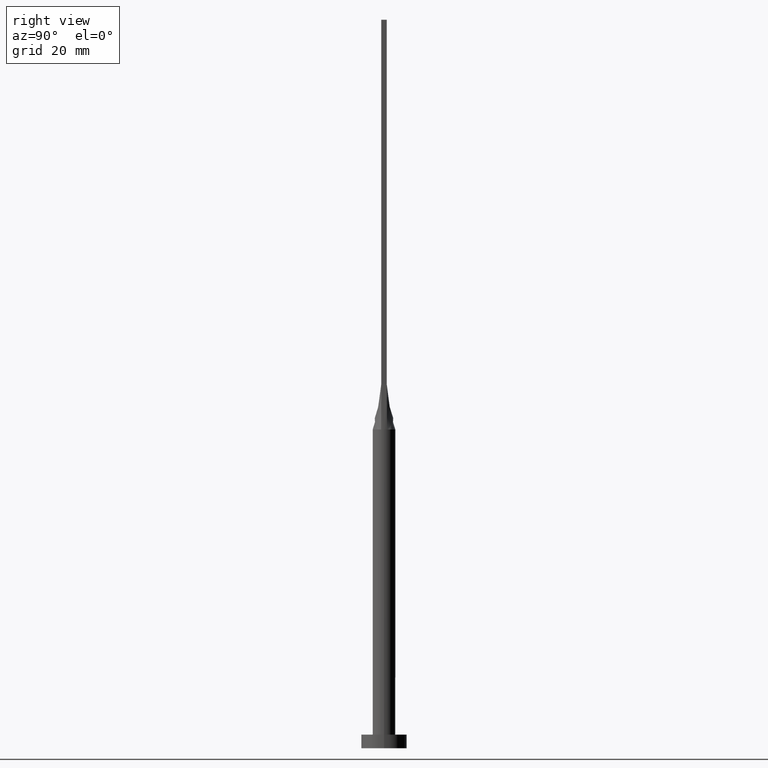
[diagram: clean part render]
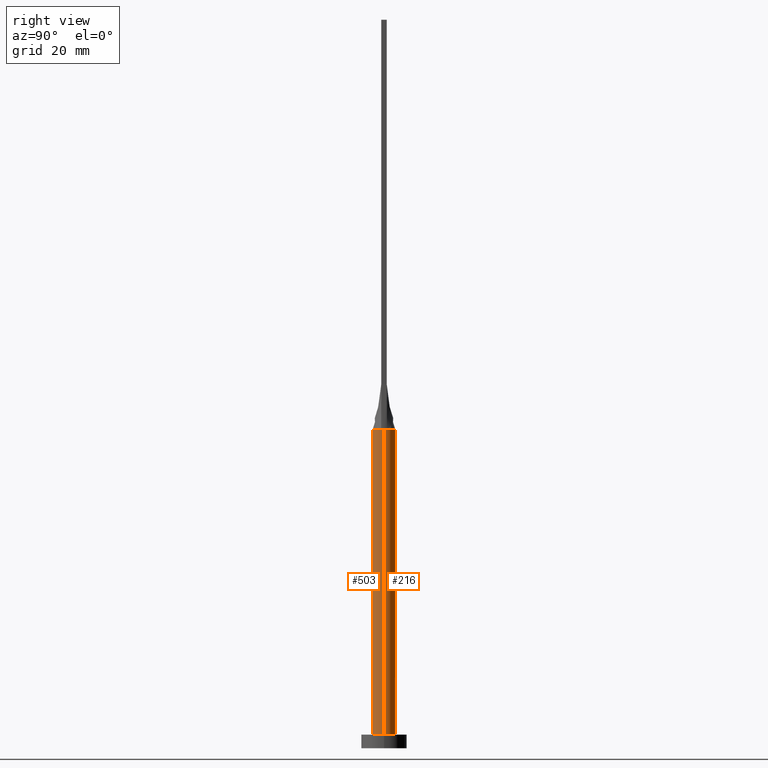
[diagram: same view with one multi-face feature highlighted, each face labeled with its STEP entity id]
A machine part, right view. The highlighted faces form ONE feature: a constant-radius fillet chain: 2 tangent blend faces with common blend radius 2.5 mm. The faces share edges in the B-rep.
Their STEP definitions:
[1] entity #216 (Cylinder):
#3 = CARTESIAN_POINT ( 'NONE',  ( -0.6394215159088052491, 2.436483607037785326, 70.00000000000000000 ) ) ;
#4 = ORIENTED_EDGE ( 'NONE', *, *, #564, .F. ) ;
#7 = CARTESIAN_POINT ( 'NONE',  ( 1.880930080310023289, 1.670304384679167642, 69.99999999999998579 ) ) ;
#23 = AXIS2_PLACEMENT_3D ( 'NONE', #435, #570, #172 ) ;
#44 = ORIENTED_EDGE ( 'NONE', *, *, #307, .T. ) ;
#46 = CARTESIAN_POINT ( 'NONE',  ( 0.6394215159088050271, 2.436483607037784882, 69.99999999999998579 ) ) ;
#62 = CARTESIAN_POINT ( 'NONE',  ( -2.415775789045403688, 0.6442075170323000588, 70.00000000000000000 ) ) ;
#85 = DIRECTION ( 'NONE',  ( 1.000000000000000000, 0.000000000000000000, 0.000000000000000000 ) ) ;
#94 = CARTESIAN_POINT ( 'NONE',  ( -2.415775789045403688, 0.6442075170323000588, 70.00000000000000000 ) ) ;
#95 = ORIENTED_EDGE ( 'NONE', *, *, #232, .T. ) ;
#98 = VERTEX_POINT ( 'NONE', #62 ) ;
#100 = CARTESIAN_POINT ( 'NONE',  ( 0.3201159637850002349, 2.500000000000000888, 70.00000000000000000 ) ) ;
#108 = VECTOR ( 'NONE', #488, 1000.000000000000000 ) ;
#115 = CYLINDRICAL_SURFACE ( 'NONE', #482, 2.500000000000000000 ) ;
#137 = AXIS2_PLACEMENT_3D ( 'NONE', #171, #487, #476 ) ;
#141 = CARTESIAN_POINT ( 'NONE',  ( 1.466504377161500949, 2.043814966248089782, 69.99999999999998579 ) ) ;
#148 = VERTEX_POINT ( 'NONE', #428 ) ;
#171 = CARTESIAN_POINT ( 'NONE',  ( 0.000000000000000000, 0.000000000000000000, 70.00000000000000000 ) ) ;
#172 = DIRECTION ( 'NONE',  ( 1.000000000000000000, 0.000000000000000000, 0.000000000000000000 ) ) ;
#192 = CARTESIAN_POINT ( 'NONE',  ( -1.466504377161500727, 2.043814966248090226, 70.00000000000000000 ) ) ;
#216 = ADVANCED_FACE ( 'NONE', ( #523 ), #115, .T. ) ;
#220 = VERTEX_POINT ( 'NONE', #477 ) ;
#225 = AXIS2_PLACEMENT_3D ( 'NONE', #350, #562, #85 ) ;
#232 = EDGE_CURVE ( 'NONE', #148, #220, #383, .T. ) ;
#241 = CARTESIAN_POINT ( 'NONE',  ( -0.3201159637850009010, 2.500000000000000444, 69.99999999999998579 ) ) ;
#242 = EDGE_LOOP ( 'NONE', ( #319, #95, #44, #263, #4, #410 ) ) ;
#263 = ORIENTED_EDGE ( 'NONE', *, *, #462, .F. ) ;
#274 = VERTEX_POINT ( 'NONE', #386 ) ;
#276 = VERTEX_POINT ( 'NONE', #389 ) ;
#280 = CIRCLE ( 'NONE', #23, 2.500000000000000000 ) ;
#281 = CARTESIAN_POINT ( 'NONE',  ( -1.212939335911090044, 2.207734225347456114, 70.00000000000001421 ) ) ;
#284 = CARTESIAN_POINT ( 'NONE',  ( -2.500000000000000000, 0.000000000000000000, 3.000000000000000000 ) ) ;
#307 = EDGE_CURVE ( 'NONE', #220, #460, #280, .T. ) ;
#319 = ORIENTED_EDGE ( 'NONE', *, *, #551, .F. ) ;
#321 = CARTESIAN_POINT ( 'NONE',  ( -2.283437435282019923, 1.045786430836911141, 70.00000000000001421 ) ) ;
#348 = DIRECTION ( 'NONE',  ( -1.000000000000000000, 0.000000000000000000, 0.000000000000000000 ) ) ;
#350 = CARTESIAN_POINT ( 'NONE',  ( 0.000000000000000000, 0.000000000000000000, 70.00000000000000000 ) ) ;
#355 = EDGE_CURVE ( 'NONE', #274, #98, #424, .T. ) ;
#367 = CARTESIAN_POINT ( 'NONE',  ( 1.212939335911088934, 2.207734225347457002, 69.99999999999998579 ) ) ;
#379 = CIRCLE ( 'NONE', #225, 2.500000000000000000 ) ;
#383 = LINE ( 'NONE', #439, #108 ) ;
#386 = CARTESIAN_POINT ( 'NONE',  ( 2.415751997725693823, 0.6442011318043520118, 70.00000000000000000 ) ) ;
#389 = CARTESIAN_POINT ( 'NONE',  ( -2.499999999999999556, -1.638601646481158325E-16, 70.00000000000000000 ) ) ;
#401 = CARTESIAN_POINT ( 'NONE',  ( 2.363720129086103405, 0.8386587010896275896, 69.99999999999998579 ) ) ;
#403 = CARTESIAN_POINT ( 'NONE',  ( 2.283437435282019923, 1.045786430836911585, 70.00000000000000000 ) ) ;
#409 = CARTESIAN_POINT ( 'NONE',  ( 2.415751997725693823, 0.6442011318043520118, 70.00000000000000000 ) ) ;
#410 = ORIENTED_EDGE ( 'NONE', *, *, #355, .F. ) ;
#412 = CARTESIAN_POINT ( 'NONE',  ( -2.042400361660746899, 1.461628045180436430, 70.00000000000000000 ) ) ;
#420 = LINE ( 'NONE', #422, #458 ) ;
#422 = CARTESIAN_POINT ( 'NONE',  ( -2.500000000000000000, 0.000000000000000000, 70.00000000000000000 ) ) ;
#424 = B_SPLINE_CURVE_WITH_KNOTS ( 'NONE', 3,
 ( #409, #401, #403, #489, #7, #141, #367, #46, #100, #241, #3, #281, #192, #534, #412, #321, #540, #94 ),
 .UNSPECIFIED., .F., .F.,
 ( 4, 2, 2, 2, 2, 2, 2, 2, 4 ),
 ( 0.000000000000000000, 0.1249999999999999445, 0.2499999999999998890, 0.3749999999999998335, 0.4999999999999997780, 0.6249999999999997780, 0.7499999999999997780, 0.8749999999999997780, 1.000000000000000000 ),
 .UNSPECIFIED. ) ;
#428 = CARTESIAN_POINT ( 'NONE',  ( 2.499999999999999556, 1.077931475469669239E-17, 70.00000000000000000 ) ) ;
#435 = CARTESIAN_POINT ( 'NONE',  ( 0.000000000000000000, 0.000000000000000000, 3.000000000000000000 ) ) ;
#439 = CARTESIAN_POINT ( 'NONE',  ( 2.500000000000000000, 3.061616997868383141E-16, 70.00000000000000000 ) ) ;
#442 = CARTESIAN_POINT ( 'NONE',  ( 0.000000000000000000, 0.000000000000000000, 70.00000000000000000 ) ) ;
#458 = VECTOR ( 'NONE', #461, 1000.000000000000000 ) ;
#460 = VERTEX_POINT ( 'NONE', #284 ) ;
#461 = DIRECTION ( 'NONE',  ( -0.000000000000000000, -0.000000000000000000, -1.000000000000000000 ) ) ;
#462 = EDGE_CURVE ( 'NONE', #276, #460, #420, .T. ) ;
#476 = DIRECTION ( 'NONE',  ( 1.000000000000000000, 0.000000000000000000, 0.000000000000000000 ) ) ;
#477 = CARTESIAN_POINT ( 'NONE',  ( 2.500000000000000000, 3.061616997868383141E-16, 3.000000000000000000 ) ) ;
#480 = DIRECTION ( 'NONE',  ( -0.000000000000000000, -0.000000000000000000, -1.000000000000000000 ) ) ;
#482 = AXIS2_PLACEMENT_3D ( 'NONE', #442, #480, #348 ) ;
#487 = DIRECTION ( 'NONE',  ( 0.000000000000000000, 0.000000000000000000, 1.000000000000000000 ) ) ;
#488 = DIRECTION ( 'NONE',  ( -0.000000000000000000, -0.000000000000000000, -1.000000000000000000 ) ) ;
#489 = CARTESIAN_POINT ( 'NONE',  ( 2.042400361660745567, 1.461628045180436430, 69.99999999999998579 ) ) ;
#523 = FACE_OUTER_BOUND ( 'NONE', #242, .T. ) ;
#534 = CARTESIAN_POINT ( 'NONE',  ( -1.880930080310023733, 1.670304384679167420, 69.99999999999998579 ) ) ;
#540 = CARTESIAN_POINT ( 'NONE',  ( -2.363720129086103849, 0.8386587010896275896, 70.00000000000001421 ) ) ;
#551 = EDGE_CURVE ( 'NONE', #148, #274, #574, .T. ) ;
#562 = DIRECTION ( 'NONE',  ( 0.000000000000000000, 0.000000000000000000, 1.000000000000000000 ) ) ;
#564 = EDGE_CURVE ( 'NONE', #98, #276, #379, .T. ) ;
#570 = DIRECTION ( 'NONE',  ( 0.000000000000000000, 0.000000000000000000, 1.000000000000000000 ) ) ;
#574 = CIRCLE ( 'NONE', #137, 2.500000000000000000 ) ;
[2] entity #503 (Cylinder):
#14 = CIRCLE ( 'NONE', #63, 2.500000000000000000 ) ;
#63 = AXIS2_PLACEMENT_3D ( 'NONE', #294, #517, #285 ) ;
#76 = DIRECTION ( 'NONE',  ( 0.000000000000000000, 0.000000000000000000, 1.000000000000000000 ) ) ;
#78 = EDGE_CURVE ( 'NONE', #460, #220, #565, .T. ) ;
#82 = DIRECTION ( 'NONE',  ( 0.000000000000000000, 0.000000000000000000, 1.000000000000000000 ) ) ;
#108 = VECTOR ( 'NONE', #488, 1000.000000000000000 ) ;
#109 = CIRCLE ( 'NONE', #530, 2.500000000000000000 ) ;
#111 = DIRECTION ( 'NONE',  ( 0.000000000000000000, 0.000000000000000000, 1.000000000000000000 ) ) ;
#121 = CARTESIAN_POINT ( 'NONE',  ( 0.000000000000000000, 0.000000000000000000, 70.00000000000000000 ) ) ;
#128 = CARTESIAN_POINT ( 'NONE',  ( -2.415759998437587708, -0.6442033382925431706, 70.00000000000000000 ) ) ;
#135 = ORIENTED_EDGE ( 'NONE', *, *, #139, .F. ) ;
#139 = EDGE_CURVE ( 'NONE', #276, #188, #14, .T. ) ;
#148 = VERTEX_POINT ( 'NONE', #428 ) ;
#173 = CYLINDRICAL_SURFACE ( 'NONE', #207, 2.500000000000000000 ) ;
#188 = VERTEX_POINT ( 'NONE', #128 ) ;
#190 = ORIENTED_EDGE ( 'NONE', *, *, #462, .T. ) ;
#207 = AXIS2_PLACEMENT_3D ( 'NONE', #438, #339, #569 ) ;
#218 = DIRECTION ( 'NONE',  ( 1.000000000000000000, 3.552713678800500929E-15, 0.000000000000000000 ) ) ;
#220 = VERTEX_POINT ( 'NONE', #477 ) ;
#229 = EDGE_CURVE ( 'NONE', #452, #148, #272, .T. ) ;
#232 = EDGE_CURVE ( 'NONE', #148, #220, #383, .T. ) ;
#259 = DIRECTION ( 'NONE',  ( 1.000000000000000000, 0.000000000000000000, 0.000000000000000000 ) ) ;
#272 = CIRCLE ( 'NONE', #405, 2.500000000000000000 ) ;
#276 = VERTEX_POINT ( 'NONE', #389 ) ;
#284 = CARTESIAN_POINT ( 'NONE',  ( -2.500000000000000000, 0.000000000000000000, 3.000000000000000000 ) ) ;
#285 = DIRECTION ( 'NONE',  ( 1.000000000000000000, 0.000000000000000000, 0.000000000000000000 ) ) ;
#294 = CARTESIAN_POINT ( 'NONE',  ( 0.000000000000000000, 0.000000000000000000, 70.00000000000000000 ) ) ;
#328 = CARTESIAN_POINT ( 'NONE',  ( 2.415783834663384866, -0.6442097370852554183, 70.00000000000000000 ) ) ;
#336 = DIRECTION ( 'NONE',  ( 1.000000000000000000, 0.000000000000000000, 0.000000000000000000 ) ) ;
#339 = DIRECTION ( 'NONE',  ( -0.000000000000000000, -0.000000000000000000, -1.000000000000000000 ) ) ;
#370 = ORIENTED_EDGE ( 'NONE', *, *, #232, .F. ) ;
#383 = LINE ( 'NONE', #439, #108 ) ;
#384 = CARTESIAN_POINT ( 'NONE',  ( 0.000000000000000000, 0.000000000000000000, 70.00000000000000000 ) ) ;
#389 = CARTESIAN_POINT ( 'NONE',  ( -2.499999999999999556, -1.638601646481158325E-16, 70.00000000000000000 ) ) ;
#402 = ORIENTED_EDGE ( 'NONE', *, *, #229, .F. ) ;
#405 = AXIS2_PLACEMENT_3D ( 'NONE', #121, #76, #218 ) ;
#420 = LINE ( 'NONE', #422, #458 ) ;
#422 = CARTESIAN_POINT ( 'NONE',  ( -2.500000000000000000, 0.000000000000000000, 70.00000000000000000 ) ) ;
#425 = AXIS2_PLACEMENT_3D ( 'NONE', #510, #111, #336 ) ;
#428 = CARTESIAN_POINT ( 'NONE',  ( 2.499999999999999556, 1.077931475469669239E-17, 70.00000000000000000 ) ) ;
#437 = EDGE_LOOP ( 'NONE', ( #370, #402, #505, #135, #190, #440 ) ) ;
#438 = CARTESIAN_POINT ( 'NONE',  ( 0.000000000000000000, 0.000000000000000000, 70.00000000000000000 ) ) ;
#439 = CARTESIAN_POINT ( 'NONE',  ( 2.500000000000000000, 3.061616997868383141E-16, 70.00000000000000000 ) ) ;
#440 = ORIENTED_EDGE ( 'NONE', *, *, #78, .T. ) ;
#452 = VERTEX_POINT ( 'NONE', #328 ) ;
#458 = VECTOR ( 'NONE', #461, 1000.000000000000000 ) ;
#460 = VERTEX_POINT ( 'NONE', #284 ) ;
#461 = DIRECTION ( 'NONE',  ( -0.000000000000000000, -0.000000000000000000, -1.000000000000000000 ) ) ;
#462 = EDGE_CURVE ( 'NONE', #276, #460, #420, .T. ) ;
#477 = CARTESIAN_POINT ( 'NONE',  ( 2.500000000000000000, 3.061616997868383141E-16, 3.000000000000000000 ) ) ;
#481 = FACE_OUTER_BOUND ( 'NONE', #437, .T. ) ;
#488 = DIRECTION ( 'NONE',  ( -0.000000000000000000, -0.000000000000000000, -1.000000000000000000 ) ) ;
#503 = ADVANCED_FACE ( 'NONE', ( #481 ), #173, .T. ) ;
#505 = ORIENTED_EDGE ( 'NONE', *, *, #522, .F. ) ;
#510 = CARTESIAN_POINT ( 'NONE',  ( 0.000000000000000000, 0.000000000000000000, 3.000000000000000000 ) ) ;
#517 = DIRECTION ( 'NONE',  ( 0.000000000000000000, 0.000000000000000000, 1.000000000000000000 ) ) ;
#522 = EDGE_CURVE ( 'NONE', #188, #452, #109, .T. ) ;
#530 = AXIS2_PLACEMENT_3D ( 'NONE', #384, #82, #259 ) ;
#565 = CIRCLE ( 'NONE', #425, 2.500000000000000000 ) ;
#569 = DIRECTION ( 'NONE',  ( -1.000000000000000000, 0.000000000000000000, 0.000000000000000000 ) ) ;